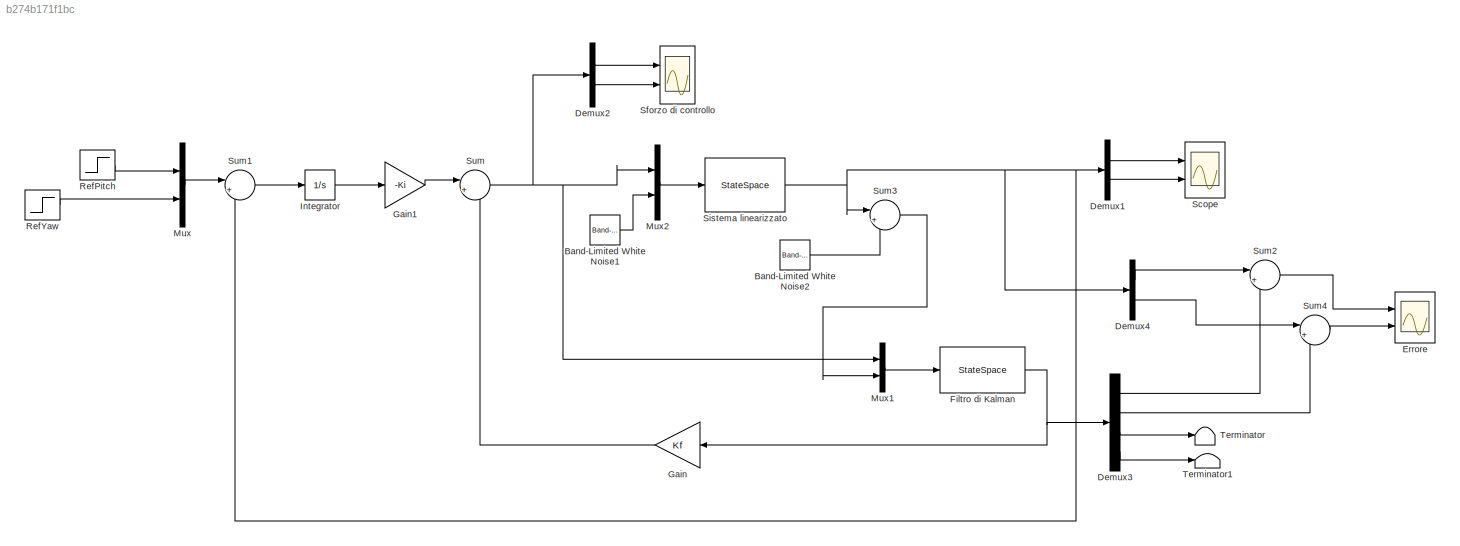
MODEL slx_b274b171f1bc
KIND model
CONFIG AbsTol = auto
CONFIG EnableMultiTasking = off
CONFIG FixedStep = auto
CONFIG MaxStep = 1e-3
CONFIG MinStep = auto
CONFIG RelTol = 1e-3
CONFIG SampleTimeConstraint = Unconstrained
CONFIG SolverName = VariableStepAuto
CONFIG StartTime = 0.0
CONFIG StopTime = 10.0
BLOCK [Reference] Band-Limited White Noise1  REF=simulink/Sources/Band-Limited
White Noise
  Ports = [0, 1]
  SourceBlock = simulink/Sources/Band-Limited\nWhite Noise
  SourceProductBaseCode = SL
  SourceType = Band-Limited White Noise.
BLOCK [Reference] Band-Limited White Noise2  REF=simulink/Sources/Band-Limited
White Noise
  Ports = [0, 1]
  SourceBlock = simulink/Sources/Band-Limited\nWhite Noise
  SourceProductBaseCode = SL
  SourceType = Band-Limited White Noise.
BLOCK [Demux] Demux1
  Outputs = 2
  Ports = [1, 2]
BLOCK [Demux] Demux2
  Outputs = 2
  Ports = [1, 2]
BLOCK [Demux] Demux3
  Ports = [1, 4]
BLOCK [Demux] Demux4
  Outputs = 2
  Ports = [1, 2]
BLOCK [Scope] Errore
  Floating = off
  NumInputPorts = 2
  Ports = [2]
  ScopeSpecificationString = Simulink.scopes.TimeScopeBlockCfg('CurrentConfiguration', extmgr.ConfigurationSet(extmgr.Configuration('Core','General UI',true),extmgr.Configuration('Core','Source UI',true),extmgr.Configuration('Sources','WiredSimulink',true,'DataLoggingVariableName','ScopeData1'),extmgr.Configuration('Visuals','Time Domain',true,'SerializedDisplays',{struct('MinYLimReal','-0.01342','MaxYLimReal','0.1126','YLabe...<+2074ch>
BLOCK [StateSpace] Filtro di Kalman
  A = Afk
  B = Bfk
  C = Cfk
  D = Dfk
  InitialCondition = 0
  Ports = [1, 1]
BLOCK [Gain] Gain
  Gain = Kf
  Multiplication = Matrix(K*u)
BLOCK [Gain] Gain1
  Gain = -Ki
  Multiplication = Matrix(K*u)
BLOCK [Integrator] Integrator
  Ports = [1, 1]
BLOCK [Mux] Mux
  DisplayOption = bar
  Inputs = 2
  Ports = [2, 1]
BLOCK [Mux] Mux1
  DisplayOption = bar
  Inputs = 2
  Ports = [2, 1]
BLOCK [Mux] Mux2
  DisplayOption = bar
  Inputs = 2
  Ports = [2, 1]
BLOCK [Step] RefPitch
  After = 0.3
  SampleTime = 0
BLOCK [Step] RefYaw
  After = 0.3
  SampleTime = 0
BLOCK [Scope] Scope
  Floating = off
  NumInputPorts = 2
  Ports = [2]
  ScopeSpecificationString = Simulink.scopes.TimeScopeBlockCfg('CurrentConfiguration', extmgr.ConfigurationSet(extmgr.Configuration('Core','General UI',true),extmgr.Configuration('Core','Source UI',true),extmgr.Configuration('Sources','WiredSimulink',true,'DataLoggingVariableName','ScopeData1'),extmgr.Configuration('Visuals','Time Domain',true,'SerializedDisplays',{struct('MinYLimReal','-1.09907','MaxYLimReal','1.58456','YLab...<+2082ch>
BLOCK [Scope] Sforzo di controllo
  Floating = off
  NumInputPorts = 2
  Ports = [2]
  ScopeSpecificationString = Simulink.scopes.TimeScopeBlockCfg('CurrentConfiguration', extmgr.ConfigurationSet(extmgr.Configuration('Core','General UI',true),extmgr.Configuration('Core','Source UI',true),extmgr.Configuration('Sources','WiredSimulink',true),extmgr.Configuration('Visuals','Time Domain',true,'SerializedDisplays',{struct('MinYLimReal','-0.28479','MaxYLimReal','0.73673','YLabelReal','','MinYLimMag','0.00000','MaxY...<+2002ch>
BLOCK [StateSpace] Sistema linearizzato
  A = A
  B = [B eye(4)]
  C = C
  D = [D zeros(2,4)]
  InitialCondition = [0;0;0;0]
  ParameterTunability = Optimized
  Ports = [1, 1]
BLOCK [Sum] Sum
  Inputs = |+-
  Ports = [2, 1]
BLOCK [Sum] Sum1
  Inputs = |+-
  Ports = [2, 1]
BLOCK [Sum] Sum2
  Inputs = |+-
  Ports = [2, 1]
BLOCK [Sum] Sum3
  Inputs = |++
  Ports = [2, 1]
BLOCK [Sum] Sum4
  Inputs = |+-
  Ports = [2, 1]
BLOCK [Terminator] Terminator
BLOCK [Terminator] Terminator1
LINE Band-Limited White Noise1:1 -> Mux2:2
LINE Band-Limited White Noise2:1 -> Sum3:2
LINE Demux1:1 -> Scope:1
LINE Demux1:2 -> Scope:2
LINE Demux2:1 -> Sforzo di controllo:1
LINE Demux2:2 -> Sforzo di controllo:2
LINE Demux3:1 -> Sum2:2
LINE Demux3:2 -> Sum4:2
LINE Demux3:3 -> Terminator:1
LINE Demux3:4 -> Terminator1:1
LINE Demux4:1 -> Sum2:1
LINE Demux4:2 -> Sum4:1
NET Filtro di Kalman:1 -> Demux3:1, Gain:1
LINE Gain1:1 -> Sum:1
LINE Gain:1 -> Sum:2
LINE Integrator:1 -> Gain1:1
LINE Mux1:1 -> Filtro di Kalman:1
LINE Mux2:1 -> Sistema linearizzato:1
LINE Mux:1 -> Sum1:1
LINE RefPitch:1 -> Mux:1
LINE RefYaw:1 -> Mux:2
NET Sistema linearizzato:1 -> Demux1:1, Demux4:1, Sum1:2, Sum3:1
LINE Sum1:1 -> Integrator:1
LINE Sum2:1 -> Errore:1
LINE Sum3:1 -> Mux1:2
LINE Sum4:1 -> Errore:2
NET Sum:1 -> Demux2:1, Mux1:1, Mux2:1
note: NET lines group one-source signal fan-out (src -> all destinations, sorted); 1:1 wires keep LINE
